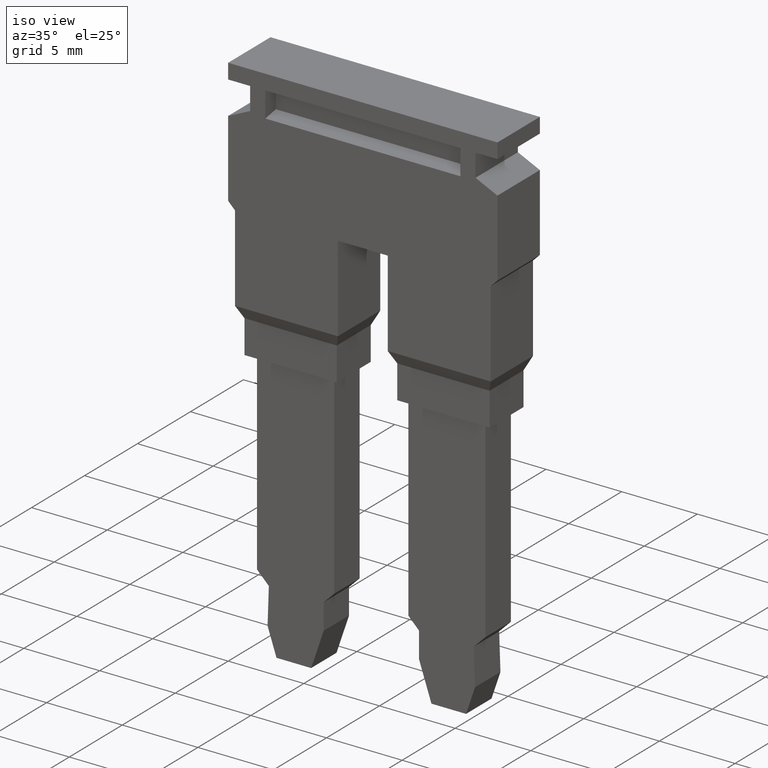
[diagram: clean part render]
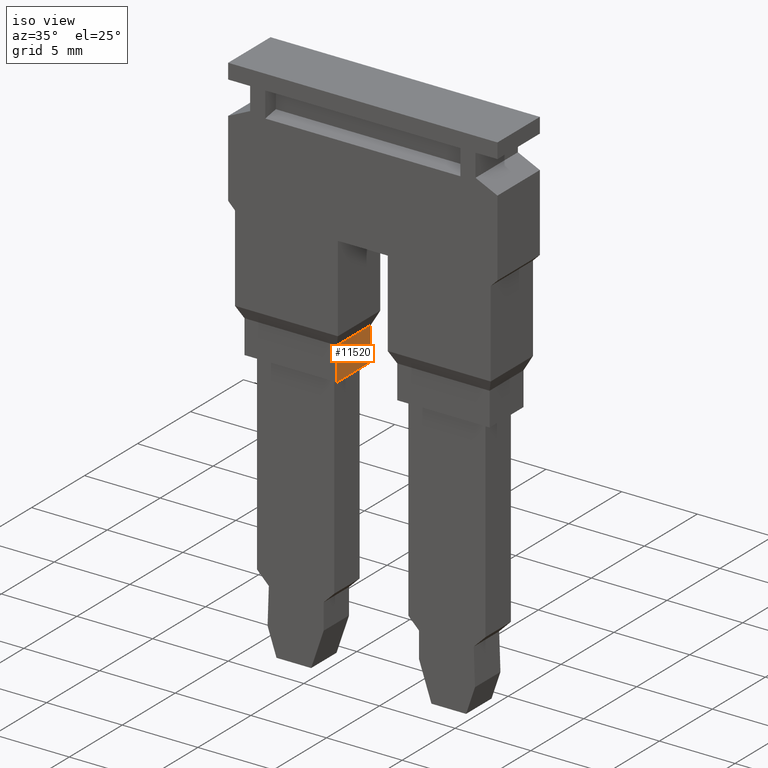
[diagram: same view with one face highlighted and labeled with its STEP entity id]
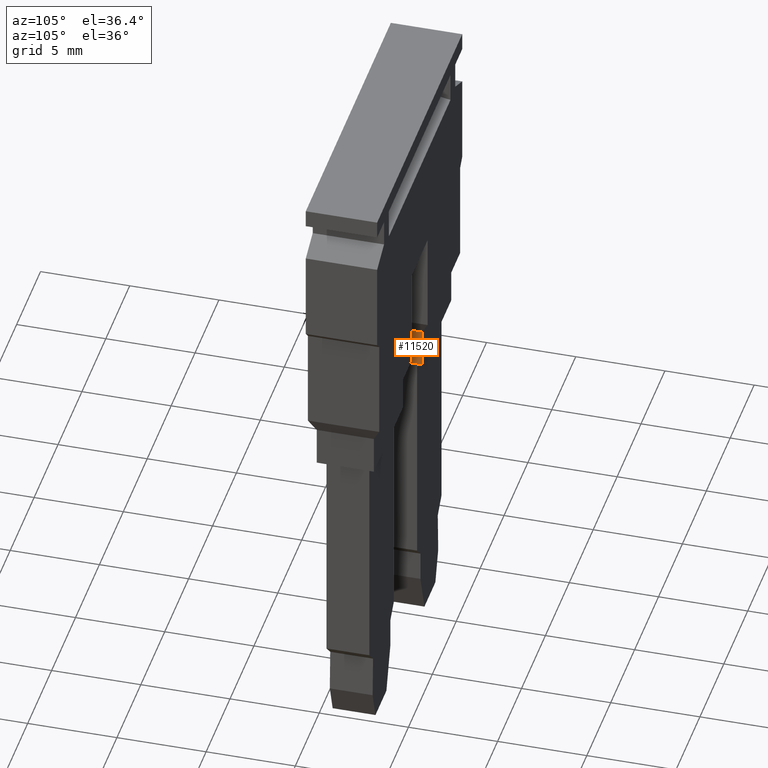
[diagram: same view with one face highlighted and labeled with its STEP entity id]
A machine part, iso view. The second image highlights one B-rep face of the part: STEP entity #11520.
A second angle (auxiliary view) of the same face is appended — the face is thin or edge-on in the first view.
In plain terms, the highlighted planar face has unit normal (1, 0, -0).
Its self-contained STEP definition (entity closure, byte-faithful):
#1890=CARTESIAN_POINT('',(-2.79999999980682,36.099474000011,
-1.99999999999995));
#1900=VERTEX_POINT('',#1890);
#3210=CARTESIAN_POINT('',(-6.00000000005228,36.0994739999635,
-1.99999999999995));
#3220=VERTEX_POINT('',#3210);
#3610=CARTESIAN_POINT('',(-6.00000000004716,35.8654186231715,
-1.99999999999995));
#3620=DIRECTION('',(-2.18677767191205E-11,1.,8.24126146483239E-17));
#3630=VECTOR('',#3620,1.);
#3640=LINE('',#3610,#3630);
#3650=CARTESIAN_POINT('',(-6.00000000000417,33.8994739999577,
-1.99999999999995));
#3660=VERTEX_POINT('',#3650);
#3670=EDGE_CURVE('',#3660,#3220,#3640,.T.);
#11240=CARTESIAN_POINT('',(-2.79999999976142,33.8994740000277,
-1.99999999999995));
#11250=DIRECTION('',(5.55111512369769E-17,-8.24126146466878E-17,1.));
#11260=DIRECTION('',(1.,2.18677767191205E-11,-5.55111512351747E-17));
#11270=AXIS2_PLACEMENT_3D('',#11240,#11250,#11260);
#11280=PLANE('',#11270);
#11290=CARTESIAN_POINT('',(-2.79999999980441,35.8654186232275,
-1.99999999999995));
#11300=DIRECTION('',(-2.18677767191205E-11,1.,8.24126146483239E-17));
#11310=VECTOR('',#11300,1.);
#11320=LINE('',#11290,#11310);
#11330=CARTESIAN_POINT('',(-2.79999999976142,33.8994740000277,
-1.99999999999995));
#11340=VERTEX_POINT('',#11330);
#11350=EDGE_CURVE('',#11340,#1900,#11320,.T.);
#11360=ORIENTED_EDGE('',*,*,#11350,.T.);
#11370=CARTESIAN_POINT('',(-2.3999999997739,33.8994740000365,
-1.99999999999995));
#11380=DIRECTION('',(-1.,-2.18677767191205E-11,5.5511151234932E-17));
#11390=VECTOR('',#11380,1.);
#11400=LINE('',#11370,#11390);
#11410=EDGE_CURVE('',#11340,#3660,#11400,.T.);
#11420=ORIENTED_EDGE('',*,*,#11410,.F.);
#11430=ORIENTED_EDGE('',*,*,#3670,.F.);
#11440=CARTESIAN_POINT('',(-2.39999999981238,36.0994740000215,
-1.99999999999995));
#11450=DIRECTION('',(1.,1.7494295035252E-11,-5.55111512355352E-17));
#11460=VECTOR('',#11450,1.);
#11470=LINE('',#11440,#11460);
#11480=EDGE_CURVE('',#3220,#1900,#11470,.T.);
#11490=ORIENTED_EDGE('',*,*,#11480,.F.);
#11500=EDGE_LOOP('',(#11490,#11430,#11420,#11360));
#11510=FACE_OUTER_BOUND('',#11500,.T.);
#11520=ADVANCED_FACE('',(#11510),#11280,.T.);